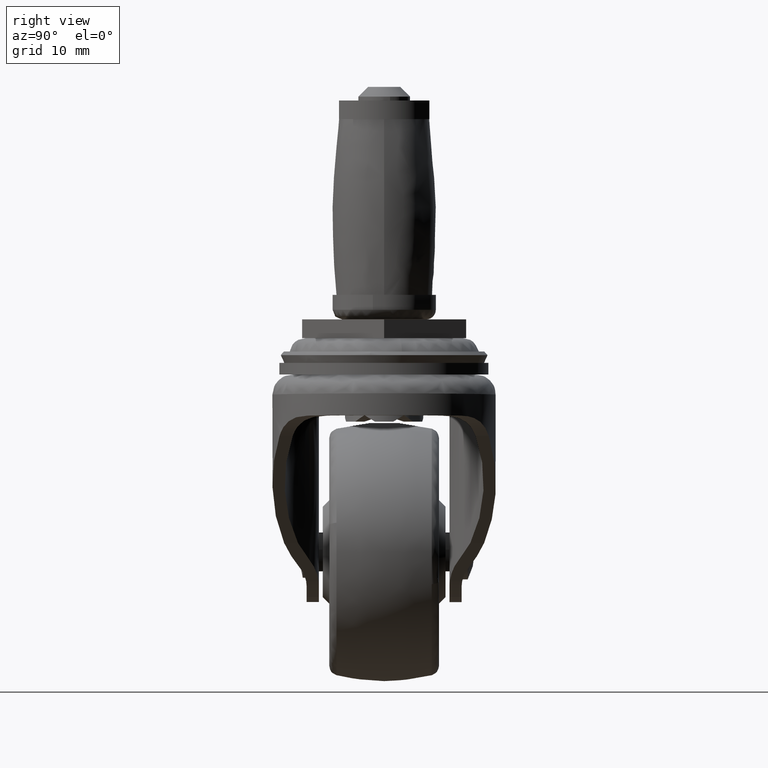
[diagram: clean part render]
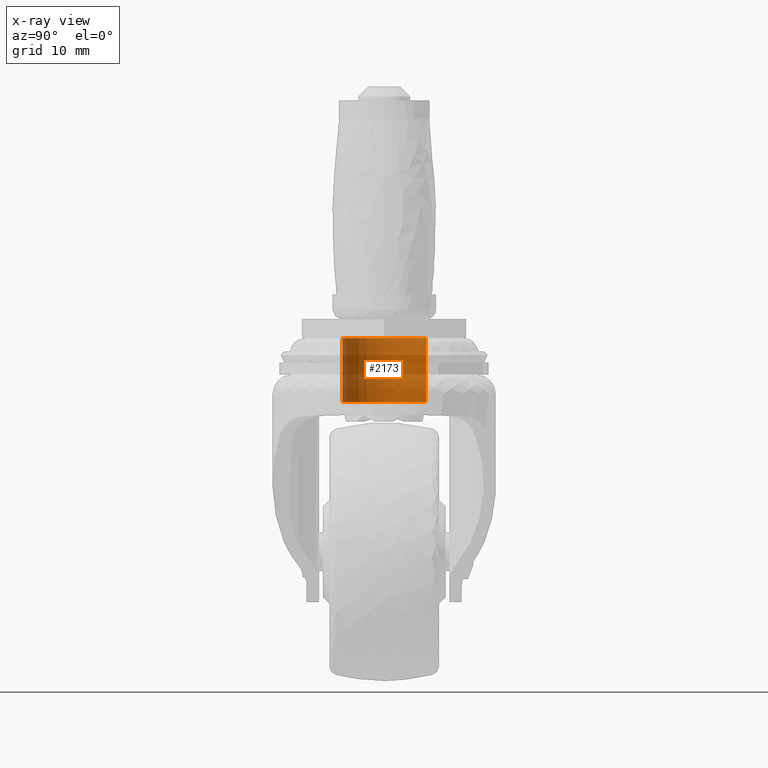
[diagram: x-ray — body ghosted, one internal face saturated and labeled with its STEP entity id]
A machine part, right view, then the same camera in x-ray: the body is ghosted and one INTERNAL B-rep face — a face not visible from any outside direction — is saturated and labeled: STEP entity #2173.
In plain terms, the highlighted face is a freeform B-spline surface patch.
Its self-contained STEP definition (entity closure, byte-faithful):
#2071=CARTESIAN_POINT('',(0.767222525268921,-6.454561921363752,-2.651995599999999));
#2072=CARTESIAN_POINT('',(0.582495736146848,-6.476519500415857,-2.651995599999999));
#2073=CARTESIAN_POINT('',(0.396815506976565,-6.487876189742053,-2.651995599999999));
#2074=CARTESIAN_POINT('',(-6.091060682765488,-6.884691696718619,-2.651995599999999));
#2075=CARTESIAN_POINT('',(-6.487876189742053,-0.396815506976565,-2.651995599999999));
#2076=CARTESIAN_POINT('',(-6.884691696718619,6.091060682765488,-2.651995599999999));
#2077=CARTESIAN_POINT('',(-0.396815506976565,6.487876189742053,-2.651995599999999));
#2078=CARTESIAN_POINT('',(0.767222525268921,-6.454561921363752,-13.073918235000006));
#2079=CARTESIAN_POINT('',(0.582495736146848,-6.476519500415857,-13.073918235000002));
#2080=CARTESIAN_POINT('',(0.396815506976565,-6.487876189742053,-13.073918235000001));
#2081=CARTESIAN_POINT('',(-6.091060682765488,-6.884691696718619,-13.073918235000002));
#2082=CARTESIAN_POINT('',(-6.487876189742053,-0.396815506976565,-13.073918235000001));
#2083=CARTESIAN_POINT('',(-6.884691696718619,6.091060682765488,-13.073918235000002));
#2084=CARTESIAN_POINT('',(-0.396815506976565,6.487876189742053,-13.073918235000001));
#2092=(BOUNDED_SURFACE()B_SPLINE_SURFACE(2,1,((#2071,#2078),(#2072,#2079),(#2073,#2080),(#2074,#2081),(#2075,#2082),(#2076,#2083),(#2077,#2084)),.UNSPECIFIED.,.F.,.F.,.U.)B_SPLINE_SURFACE_WITH_KNOTS((3,2,2,3),(2,2),(0.0,0.430782104868014,11.200334726568350,21.969887348268681),(0.0,10.421922635000010),.UNSPECIFIED.)GEOMETRIC_REPRESENTATION_ITEM()RATIONAL_B_SPLINE_SURFACE(((0.977505800795127,0.977505800795127),(0.988284271247462,0.988284271247462),(1.0,1.0),(0.707106781186548,0.707106781186548),(1.0,1.0),(0.707106781186548,0.707106781186548),(1.0,1.0)))REPRESENTATION_ITEM('')SURFACE());
#2093=CARTESIAN_POINT('',(0.767222525359351,-6.454561921353003,-12.819725000000000));
#2094=VERTEX_POINT('',#2093);
#2095=CARTESIAN_POINT('',(-6.499999999999920,0.0,-12.819725000000000));
#2096=VERTEX_POINT('',#2095);
#2097=CARTESIAN_POINT('',(0.767222525359351,-6.454561921353002,-12.819724999999998));
#2098=CARTESIAN_POINT('',(0.384956777828798,-6.499999999999920,-12.819724999999998));
#2099=CARTESIAN_POINT('',(0.0,-6.499999999999920,-12.819725000000000));
#2100=CARTESIAN_POINT('',(-6.499999999999920,-6.499999999999920,-12.819725000000000));
#2101=CARTESIAN_POINT('',(-6.499999999999920,0.0,-12.819725000000000));
#2109=(BOUNDED_CURVE()B_SPLINE_CURVE(2,(#2097,#2098,#2099,#2100,#2101),.UNSPECIFIED.,.F.,.U.)B_SPLINE_CURVE_WITH_KNOTS((3,2,3),(0.729562473510909,0.750000000000000,1.0),.UNSPECIFIED.)CURVE()GEOMETRIC_REPRESENTATION_ITEM()RATIONAL_B_SPLINE_CURVE((0.956026754178604,0.976055948328099,1.0,0.707106781186547,1.0))REPRESENTATION_ITEM(''));
#2110=EDGE_CURVE('',#2094,#2096,#2109,.T.);
#2111=ORIENTED_EDGE('',*,*,#2110,.F.);
#2112=CARTESIAN_POINT('',(0.767222525359350,-6.454561921353003,-2.899989000000000));
#2113=VERTEX_POINT('',#2112);
#2114=CARTESIAN_POINT('',(0.767222525359350,-6.454561921353003,-2.899989000000000));
#2115=CARTESIAN_POINT('',(0.767222525359351,-6.454561921353003,-12.819725000000000));
#2116=QUASI_UNIFORM_CURVE('',1,(#2114,#2115),.UNSPECIFIED.,.F.,.U.);
#2117=EDGE_CURVE('',#2113,#2094,#2116,.T.);
#2118=ORIENTED_EDGE('',*,*,#2117,.F.);
#2119=CARTESIAN_POINT('',(-6.499999999999920,0.0,-2.899989000000000));
#2120=VERTEX_POINT('',#2119);
#2121=CARTESIAN_POINT('',(0.767222525359350,-6.454561921353003,-2.899989000000001));
#2122=CARTESIAN_POINT('',(0.384956777828796,-6.499999999999921,-2.899989000000001));
#2123=CARTESIAN_POINT('',(0.0,-6.499999999999920,-2.899989000000000));
#2124=CARTESIAN_POINT('',(-6.499999999999920,-6.499999999999920,-2.899989000000001));
#2125=CARTESIAN_POINT('',(-6.499999999999920,0.0,-2.899989000000000));
#2133=(BOUNDED_CURVE()B_SPLINE_CURVE(2,(#2121,#2122,#2123,#2124,#2125),.UNSPECIFIED.,.F.,.U.)B_SPLINE_CURVE_WITH_KNOTS((3,2,3),(0.229562473510909,0.250000000000000,0.500000000000000),.UNSPECIFIED.)CURVE()GEOMETRIC_REPRESENTATION_ITEM()RATIONAL_B_SPLINE_CURVE((0.956026754178604,0.976055948328099,1.0,0.707106781186547,1.0))REPRESENTATION_ITEM(''));
#2134=EDGE_CURVE('',#2113,#2120,#2133,.T.);
#2135=ORIENTED_EDGE('',*,*,#2134,.T.);
#2136=CARTESIAN_POINT('',(-0.396815507119064,6.487876189733338,-2.899989000000000));
#2137=VERTEX_POINT('',#2136);
#2138=CARTESIAN_POINT('',(-6.499999999999920,0.0,-2.899989000000000));
#2139=CARTESIAN_POINT('',(-6.499999999999920,6.114589434617840,-2.899989000000000));
#2140=CARTESIAN_POINT('',(-0.396815507119064,6.487876189733339,-2.899989000000000));
#2148=(BOUNDED_CURVE()B_SPLINE_CURVE(2,(#2138,#2139,#2140),.UNSPECIFIED.,.F.,.U.)B_SPLINE_CURVE_WITH_KNOTS((3,3),(0.500000000000000,0.739332962234389),.UNSPECIFIED.)CURVE()GEOMETRIC_REPRESENTATION_ITEM()RATIONAL_B_SPLINE_CURVE((1.0,0.719603993292046,0.976072041656957))REPRESENTATION_ITEM(''));
#2149=EDGE_CURVE('',#2120,#2137,#2148,.T.);
#2150=ORIENTED_EDGE('',*,*,#2149,.T.);
#2151=CARTESIAN_POINT('',(-0.396815507119063,6.487876189733339,-12.819725000000000));
#2152=VERTEX_POINT('',#2151);
#2153=CARTESIAN_POINT('',(-0.396815507119064,6.487876189733338,-2.899989000000000));
#2154=CARTESIAN_POINT('',(-0.396815507119063,6.487876189733339,-12.819725000000000));
#2155=QUASI_UNIFORM_CURVE('',1,(#2153,#2154),.UNSPECIFIED.,.F.,.U.);
#2156=EDGE_CURVE('',#2137,#2152,#2155,.T.);
#2157=ORIENTED_EDGE('',*,*,#2156,.T.);
#2158=CARTESIAN_POINT('',(-6.499999999999920,0.0,-12.819725000000000));
#2159=CARTESIAN_POINT('',(-6.499999999999919,6.114589434617840,-12.819725000000000));
#2160=CARTESIAN_POINT('',(-0.396815507119063,6.487876189733339,-12.819725000000004));
#2168=(BOUNDED_CURVE()B_SPLINE_CURVE(2,(#2158,#2159,#2160),.UNSPECIFIED.,.F.,.U.)B_SPLINE_CURVE_WITH_KNOTS((3,3),(0.0,0.239332962234389),.UNSPECIFIED.)CURVE()GEOMETRIC_REPRESENTATION_ITEM()RATIONAL_B_SPLINE_CURVE((1.0,0.719603993292046,0.976072041656957))REPRESENTATION_ITEM(''));
#2169=EDGE_CURVE('',#2096,#2152,#2168,.T.);
#2170=ORIENTED_EDGE('',*,*,#2169,.F.);
#2171=EDGE_LOOP('',(#2111,#2118,#2135,#2150,#2157,#2170));
#2172=FACE_OUTER_BOUND('',#2171,.T.);
#2173=ADVANCED_FACE('',(#2172),#2092,.T.);